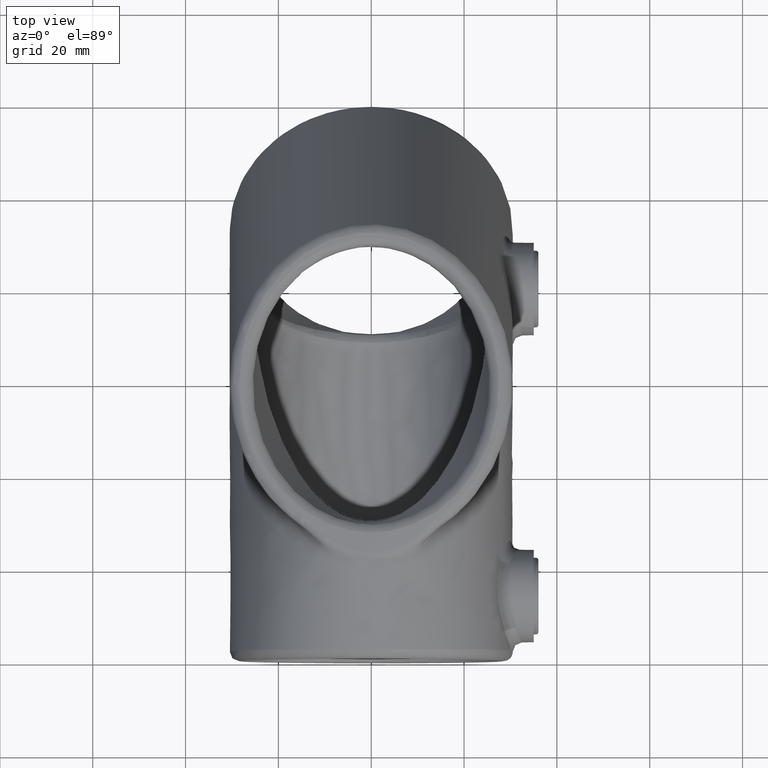
[diagram: clean part render]
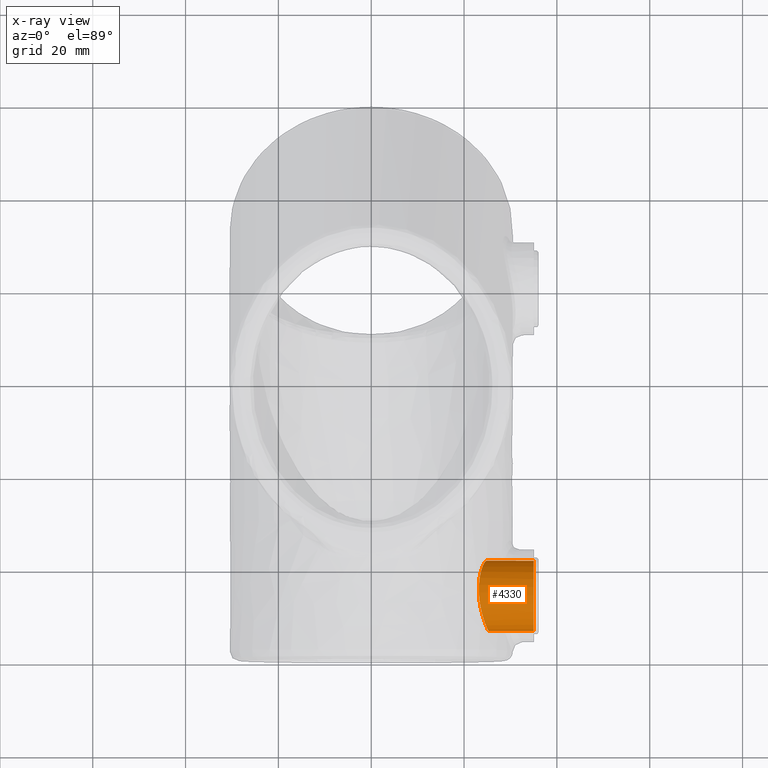
[diagram: x-ray — body ghosted, one internal face saturated and labeled with its STEP entity id]
A machine part, top view, then the same camera in x-ray: the body is ghosted and one INTERNAL B-rep face — a face not visible from any outside direction — is saturated and labeled: STEP entity #4330.
In plain terms, the highlighted cylindrical surface (bore or boss wall) has radius 7.625 mm, axis along (1, 0, 0).
Its self-contained STEP definition (entity closure, byte-faithful):
#340 = ORIENTED_EDGE ( 'NONE', *, *, #1363, .F. ) ;
#394 = CARTESIAN_POINT ( 'NONE',  ( 25.35205739207470543, 20.63825912681964070, -34.25993025644149270 ) ) ;
#450 = CARTESIAN_POINT ( 'NONE',  ( 25.42015270783332426, 7.113994889084951367, -33.81302967167546569 ) ) ;
#458 = EDGE_LOOP ( 'NONE', ( #340 ) ) ;
#485 = CARTESIAN_POINT ( 'NONE',  ( 24.25464418103321762, 20.93685739434136650, -27.32483842384122852 ) ) ;
#494 = CARTESIAN_POINT ( 'NONE',  ( 25.35202419532478402, 16.70823354535640348, -37.63228249123913116 ) ) ;
#514 = CARTESIAN_POINT ( 'NONE',  ( 23.40062181903034144, 18.04607765657521767, -24.03230189945474038 ) ) ;
#576 = CARTESIAN_POINT ( 'NONE',  ( 25.21724568917086984, 12.99119420393591717, -38.07476194696521077 ) ) ;
#610 = CARTESIAN_POINT ( 'NONE',  ( 25.21775513543371261, 10.58919311195047008, -37.33801221256884162 ) ) ;
#692 = CYLINDRICAL_SURFACE ( 'NONE', #3315, 7.624999999999985789 ) ;
#706 = EDGE_CURVE ( 'NONE', #4697, #4697, #6437, .T. ) ;
#777 = CARTESIAN_POINT ( 'NONE',  ( 35.00000000000000000, 14.00000000000000355, -38.12500000247552379 ) ) ;
#858 = CARTESIAN_POINT ( 'NONE',  ( 25.24491927110321399, 14.00000000000000533, -38.12500000247553089 ) ) ;
#1087 = CARTESIAN_POINT ( 'NONE',  ( 25.36624537103590526, 20.50957356641772478, -34.47869314492521653 ) ) ;
#1150 = CARTESIAN_POINT ( 'NONE',  ( 23.89974166681843215, 9.982976870067272301, -24.01430885878711763 ) ) ;
#1184 = CARTESIAN_POINT ( 'NONE',  ( 24.04267046617832193, 20.46945905564441048, -26.45689447898279312 ) ) ;
#1223 = CARTESIAN_POINT ( 'NONE',  ( 25.38019677001700103, 17.40495236861285022, -37.34107843429811169 ) ) ;
#1243 = CARTESIAN_POINT ( 'NONE',  ( 23.73459278528874350, 10.63198734217626829, -23.65469400554722057 ) ) ;
#1277 = CARTESIAN_POINT ( 'NONE',  ( 25.34309405446120778, 6.379037461168590717, -30.14602078669630458 ) ) ;
#1363 = EDGE_CURVE ( 'NONE', #5344, #5344, #5241, .T. ) ;
#1379 = CARTESIAN_POINT ( 'NONE',  ( 25.25618404874386513, 9.519185275142925562, -36.67470346181017504 ) ) ;
#1814 = DIRECTION ( 'NONE',  ( 0.000000000000000000, 0.000000000000000000, -1.000000000000000000 ) ) ;
#1823 = CARTESIAN_POINT ( 'NONE',  ( 24.71064640064652096, 21.56720826741510777, -29.44150823756489643 ) ) ;
#1857 = CARTESIAN_POINT ( 'NONE',  ( 25.14516142691330458, 21.44547378172111607, -32.16378908089738076 ) ) ;
#1879 = DIRECTION ( 'NONE',  ( 1.000000000000000000, -0.000000000000000000, -0.000000000000000000 ) ) ;
#1902 = CARTESIAN_POINT ( 'NONE',  ( 25.28032996660493836, 15.00671020843947367, -38.07480622162143646 ) ) ;
#1926 = CARTESIAN_POINT ( 'NONE',  ( 23.18844265278148598, 15.99012427533877378, -23.12218475161250453 ) ) ;
#1965 = CARTESIAN_POINT ( 'NONE',  ( 23.68276013324771512, 10.85476919342088031, -23.54954980043352819 ) ) ;
#1998 = CARTESIAN_POINT ( 'NONE',  ( 25.29858026634608592, 8.745526146221632047, -36.03116222951304337 ) ) ;
#2127 = CARTESIAN_POINT ( 'NONE',  ( 25.26607317480557668, 9.316196702914703920, -36.52210511348896205 ) ) ;
#2189 = FACE_OUTER_BOUND ( 'NONE', #3460, .T. ) ;
#2504 = CARTESIAN_POINT ( 'NONE',  ( 25.31861833567060316, 20.87104455679726556, -33.81546431859986512 ) ) ;
#2586 = CARTESIAN_POINT ( 'NONE',  ( 35.00000000000000000, 14.00000000000000355, -30.50000000247554155 ) ) ;
#2619 = CARTESIAN_POINT ( 'NONE',  ( 25.36936750893454473, 7.760709214860310290, -34.89039173186298370 ) ) ;
#2629 = CARTESIAN_POINT ( 'NONE',  ( 25.32133756303042205, 15.98620114413945537, -37.86608721562212310 ) ) ;
#2653 = CARTESIAN_POINT ( 'NONE',  ( 23.30827519092155597, 12.99747245540701712, -22.92448610040895574 ) ) ;
#2683 = CARTESIAN_POINT ( 'NONE',  ( 25.20909367806952872, 6.531201468363208917, -28.90573854335767834 ) ) ;
#2714 = CARTESIAN_POINT ( 'NONE',  ( 23.36699692761476754, 17.83324601293012890, -23.90382093113015571 ) ) ;
#2751 = CARTESIAN_POINT ( 'NONE',  ( 25.20529961500464466, 12.00284063577013249, -37.87604651288546620 ) ) ;
#3226 = CARTESIAN_POINT ( 'NONE',  ( 25.28000368198765457, 21.08072411074236641, -33.36187652170260520 ) ) ;
#3315 = AXIS2_PLACEMENT_3D ( 'NONE', #2586, #7635, #1814 ) ;
#3319 = CARTESIAN_POINT ( 'NONE',  ( 24.76867878858081440, 7.427125307729989245, -26.60428277351956794 ) ) ;
#3351 = CARTESIAN_POINT ( 'NONE',  ( 24.07187232150903000, 9.370800405210905737, -24.42124241045588562 ) ) ;
#3383 = CARTESIAN_POINT ( 'NONE',  ( 24.60298472026951444, 7.840303259684881176, -25.99906360774409819 ) ) ;
#3460 = EDGE_LOOP ( 'NONE', ( #6491 ) ) ;
#3930 = CARTESIAN_POINT ( 'NONE',  ( 24.41293490647303344, 21.22329917366542062, -28.00828567551577208 ) ) ;
#3956 = CARTESIAN_POINT ( 'NONE',  ( 25.04675374875493077, 21.58510116007625257, -31.42599196707358900 ) ) ;
#4042 = CARTESIAN_POINT ( 'NONE',  ( 25.44273705073942438, 6.595590968808296317, -32.38863512167756653 ) ) ;
#4072 = CARTESIAN_POINT ( 'NONE',  ( 25.13581662821660245, 6.658048457744134119, -28.42684819558359166 ) ) ;
#4134 = CARTESIAN_POINT ( 'NONE',  ( 23.21460972275834678, 16.46791318885342292, -23.26799202537078770 ) ) ;
#4169 = CARTESIAN_POINT ( 'NONE',  ( 23.78572032164581529, 19.74756252379039267, -25.46470890509088392 ) ) ;
#4305 = CARTESIAN_POINT ( 'NONE',  ( 25.20529226284872593, 11.51396739659266544, -37.72576338828794462 ) ) ;
#4330 = ADVANCED_FACE ( 'NONE', ( #2189, #4774 ), #692, .F. ) ;
#4339 = CARTESIAN_POINT ( 'NONE',  ( 25.28725033453862991, 8.929885576687112803, -36.20067566667498227 ) ) ;
#4369 = AXIS2_PLACEMENT_3D ( 'NONE', #5472, #1879, #6877 ) ;
#4651 = CARTESIAN_POINT ( 'NONE',  ( 25.41327856756696946, 19.77722931586662014, -35.50155388051614125 ) ) ;
#4697 = VERTEX_POINT ( 'NONE', #777 ) ;
#4772 = CARTESIAN_POINT ( 'NONE',  ( 25.32045956494637196, 6.395072366670802033, -29.89322127357257841 ) ) ;
#4774 = FACE_OUTER_BOUND ( 'NONE', #458, .T. ) ;
#4805 = CARTESIAN_POINT ( 'NONE',  ( 23.17525719904053716, 15.00544327864619731, -22.92492004774338099 ) ) ;
#4835 = CARTESIAN_POINT ( 'NONE',  ( 25.01174613016283388, 6.895837872343848929, -27.71910841521124880 ) ) ;
#4845 = CARTESIAN_POINT ( 'NONE',  ( 25.34188124903290174, 16.46862278553505021, -37.71873516588188835 ) ) ;
#4863 = CARTESIAN_POINT ( 'NONE',  ( 24.09522528899543659, 20.59607701360831555, -26.66685906526284100 ) ) ;
#4895 = CARTESIAN_POINT ( 'NONE',  ( 23.84316061113987217, 10.19571345575339194, -23.88719973752665737 ) ) ;
#5241 = B_SPLINE_CURVE_WITH_KNOTS ( 'NONE', 3,
 ( #5461, #9049, #1902, #9153, #2629, #4845, #494, #1223, #6314, #5621, #6794, #4651, #7613, #1087, #394, #2504, #3226, #5450, #6200, #1857, #3956, #6170, #8916, #1823, #7530, #3930, #485, #8455, #4863, #1184, #6269, #4169, #6302, #8487, #514, #2714, #7772, #5480, #4134, #1926, #4805, #6979, #5541, #2653, #9209, #9144, #1965, #1243, #4895, #1150, #3351, #7013, #6229, #7707, #6944, #3383, #3319, #8356, #4835, #9177, #4072, #2683, #5609, #4772, #1277, #5572, #8417, #4042, #9107, #450, #9068, #2619, #7739, #5510, #6333, #1998, #4339, #2127, #1379, #7138, #610, #4305, #2751, #576, #8583, #9344 ),
 .UNSPECIFIED., .T., .F.,
 ( 4, 2, 2, 2, 2, 2, 2, 2, 1, 2, 2, 2, 2, 2, 2, 2, 2, 2, 2, 2, 2, 2, 2, 2, 2, 2, 2, 2, 2, 2, 2, 1, 2, 2, 2, 2, 2, 2, 2, 2, 2, 2, 2, 4 ),
 ( 0.000000000000000000, 0.001502201088263330339, 0.002253301632394998002, 0.003004402176526666315, 0.004506603264789992534, 0.006008804353053318753, 0.007511005441316645839, 0.008262105985448306780, 0.009013206529579967721, 0.009764307073711628662, 0.01051540761784328960, 0.01201760870610663057, 0.01351980979436997327, 0.01502201088263331596, 0.01577311142676498384, 0.01652421197089665172, 0.01802641305915999095, 0.01952861414742333365, 0.02027971469155500500, 0.02103081523568667982, 0.02253301632395003987, 0.02403521741221339297, 0.02553741850047674261, 0.02703961958874009572, 0.02779072013287177054, 0.02854182067700345229, 0.03004402176526679499, 0.03079512230939847328, 0.03154622285353014810, 0.03304842394179349080, 0.03379952448592516562, 0.03455062503005683350, 0.03530172557418850138, 0.03605282611832017620, 0.03755502720658351196, 0.03905722829484684772, 0.04055942938311018348, 0.04131052992724184442, 0.04206163047137351230, 0.04281273101550518018, 0.04356383155963684112, 0.04506603264790019076, 0.04656823373616354039, 0.04807043482442688309 ),
 .UNSPECIFIED. ) ;
#5344 = VERTEX_POINT ( 'NONE', #858 ) ;
#5450 = CARTESIAN_POINT ( 'NONE',  ( 25.23064598414583770, 21.24495224617169953, -32.89039781591555567 ) ) ;
#5461 = CARTESIAN_POINT ( 'NONE',  ( 25.24491927110321399, 14.00000000000000711, -38.12500000247553800 ) ) ;
#5472 = CARTESIAN_POINT ( 'NONE',  ( 35.00000000000000000, 14.00000000000000355, -30.50000000247554155 ) ) ;
#5480 = CARTESIAN_POINT ( 'NONE',  ( 23.28034159461412145, 17.16291959744592788, -23.55741099748263778 ) ) ;
#5510 = CARTESIAN_POINT ( 'NONE',  ( 25.33389968972946349, 8.227152132390830985, -35.48780642223307780 ) ) ;
#5541 = CARTESIAN_POINT ( 'NONE',  ( 23.25562779082033060, 13.49423486418690743, -22.87534524728627972 ) ) ;
#5572 = CARTESIAN_POINT ( 'NONE',  ( 25.39964734995792739, 6.368952690036904229, -30.90339455747914599 ) ) ;
#5609 = CARTESIAN_POINT ( 'NONE',  ( 25.26831249920558164, 6.451139419152818633, -29.39645631736170017 ) ) ;
#5621 = CARTESIAN_POINT ( 'NONE',  ( 25.41691638679188259, 18.67875868886341451, -36.54171714914756564 ) ) ;
#6170 = CARTESIAN_POINT ( 'NONE',  ( 24.97177701498880609, 21.62882611307057701, -30.93240268130913506 ) ) ;
#6200 = CARTESIAN_POINT ( 'NONE',  ( 25.17565903484571876, 21.38618149379132660, -32.40988421273060283 ) ) ;
#6229 = CARTESIAN_POINT ( 'NONE',  ( 24.36932454839445938, 8.470254677434859047, -25.24429336860957918 ) ) ;
#6269 = CARTESIAN_POINT ( 'NONE',  ( 23.88707887600880753, 20.06028409077574892, -25.84666864460742275 ) ) ;
#6302 = CARTESIAN_POINT ( 'NONE',  ( 23.59625690721640012, 19.04380278682665661, -24.75990550430910275 ) ) ;
#6314 = CARTESIAN_POINT ( 'NONE',  ( 25.39621732757915495, 17.84542377899311205, -37.10347218830018790 ) ) ;
#6333 = CARTESIAN_POINT ( 'NONE',  ( 25.32190423086830577, 8.394159554396987133, -35.67472743107392574 ) ) ;
#6437 = CIRCLE ( 'NONE', #4369, 7.624999999999985789 ) ;
#6491 = ORIENTED_EDGE ( 'NONE', *, *, #706, .T. ) ;
#6794 = CARTESIAN_POINT ( 'NONE',  ( 25.42142395728152238, 19.07269601298422046, -36.21486438607256986 ) ) ;
#6877 = DIRECTION ( 'NONE',  ( 0.000000000000000000, 0.000000000000000000, -1.000000000000000000 ) ) ;
#6944 = CARTESIAN_POINT ( 'NONE',  ( 24.54596654737698813, 7.987766282532588136, -25.80382473646015384 ) ) ;
#6979 = CARTESIAN_POINT ( 'NONE',  ( 23.18895461058651009, 14.49530107673603396, -22.87465834771550988 ) ) ;
#7013 = CARTESIAN_POINT ( 'NONE',  ( 24.19081404781932321, 8.992942783976998200, -24.72854912334228317 ) ) ;
#7138 = CARTESIAN_POINT ( 'NONE',  ( 25.23012031281360734, 10.14807587363916497, -37.09995902974381465 ) ) ;
#7530 = CARTESIAN_POINT ( 'NONE',  ( 24.51539942119063653, 21.36823592513201930, -28.47709488101951436 ) ) ;
#7613 = CARTESIAN_POINT ( 'NONE',  ( 25.40085154307998039, 20.09278692038173020, -35.11240296582849396 ) ) ;
#7635 = DIRECTION ( 'NONE',  ( 1.000000000000000000, -0.000000000000000000, -0.000000000000000000 ) ) ;
#7707 = CARTESIAN_POINT ( 'NONE',  ( 24.42915680219742924, 8.302635868326637691, -25.42643534301680930 ) ) ;
#7739 = CARTESIAN_POINT ( 'NONE',  ( 25.35760371091075172, 7.910766351079807635, -35.09621789900658229 ) ) ;
#7772 = CARTESIAN_POINT ( 'NONE',  ( 23.30687370070852893, 17.39212478434888354, -23.66649118311298494 ) ) ;
#8356 = CARTESIAN_POINT ( 'NONE',  ( 24.87199068421254822, 7.190307631234163388, -27.03357171570281636 ) ) ;
#8417 = CARTESIAN_POINT ( 'NONE',  ( 25.42208522198019693, 6.411990738045608040, -31.40240299181616734 ) ) ;
#8455 = CARTESIAN_POINT ( 'NONE',  ( 24.20107220078037713, 20.82954420355333980, -27.10021657029947306 ) ) ;
#8487 = CARTESIAN_POINT ( 'NONE',  ( 23.51068696194335672, 18.66235595629548882, -24.44623963752708562 ) ) ;
#8583 = CARTESIAN_POINT ( 'NONE',  ( 25.22901469620590476, 13.49229970853893867, -38.12500000247553800 ) ) ;
#8916 = CARTESIAN_POINT ( 'NONE',  ( 24.80413581716967641, 21.62065511282850494, -29.94181043660151076 ) ) ;
#9049 = CARTESIAN_POINT ( 'NONE',  ( 25.26082384600052322, 14.50770029146106843, -38.12500000247553089 ) ) ;
#9068 = CARTESIAN_POINT ( 'NONE',  ( 25.40192677223752327, 7.345814909322380792, -34.25727320720996261 ) ) ;
#9107 = CARTESIAN_POINT ( 'NONE',  ( 25.44069830325035042, 6.738706227483052480, -32.88051354491834388 ) ) ;
#9144 = CARTESIAN_POINT ( 'NONE',  ( 23.53596455740258619, 11.53712806507035893, -23.26692830484815744 ) ) ;
#9153 = CARTESIAN_POINT ( 'NONE',  ( 25.31092005207102602, 15.74288291213316704, -37.92735596405033505 ) ) ;
#9177 = CARTESIAN_POINT ( 'NONE',  ( 25.05559339622410064, 6.808375272292372493, -27.95387877361270412 ) ) ;
#9209 = CARTESIAN_POINT ( 'NONE',  ( 23.44954030502460185, 12.01132909851848041, -23.12174408365079614 ) ) ;
#9344 = CARTESIAN_POINT ( 'NONE',  ( 25.24491927110321399, 14.00000000000000711, -38.12500000247553800 ) ) ;